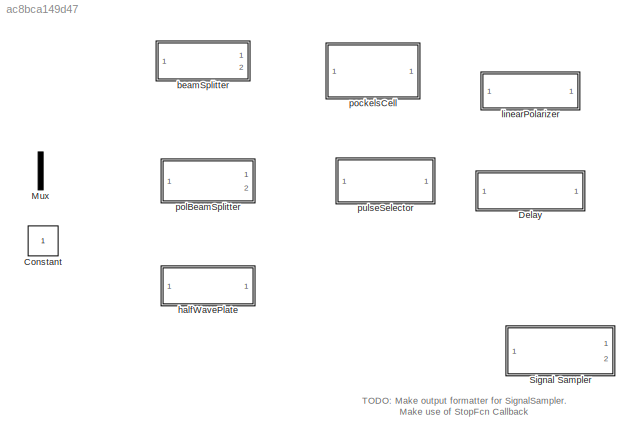
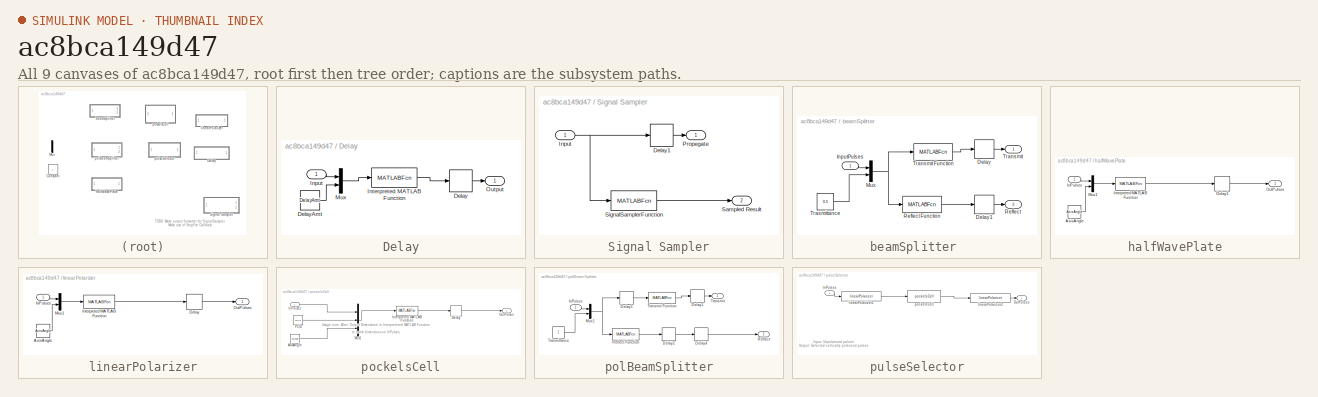
[diagram: thumbnail index - all 9 canvases of the model, root first then tree order]
MODEL slx_ac8bca149d47
KIND library
BLOCK [Constant] Constant
BLOCK [SubSystem] Delay
  Ports = [1, 1]
  RequestExecContextInheritance = off
BLOCK [Delay] Delay/Delay
  DelayLength = 1
  InitialCondition = 0
  InputPortMap = u0
  Ports = [1, 1]
BLOCK [Constant] Delay/DelayAmt
  Value = DelayAmt
BLOCK [Inport] Delay/Input
  IconDisplay = Port number
BLOCK [MATLABFcn] Delay/Interpreted MATLAB Function
  MATLABFcn = delay(u)
  Ports = [1, 1]
BLOCK [Mux] Delay/Mux
  DisplayOption = bar
  Inputs = 2
  Ports = [2, 1]
BLOCK [Outport] Delay/Output
  IconDisplay = Port number
BLOCK [Mux] Mux
  DisplayOption = bar
  Inputs = 2
  Ports = [2, 1]
BLOCK [SubSystem] Signal Sampler
  Ports = [1, 2]
  RequestExecContextInheritance = off
BLOCK [Delay] Signal Sampler/Delay1
  DelayLength = 1
  InitialCondition = 0
  InputPortMap = u0
  Ports = [1, 1]
BLOCK [Inport] Signal Sampler/Input
  IconDisplay = Port number
BLOCK [Outport] Signal Sampler/Propegate
  IconDisplay = Port number
BLOCK [Outport] Signal Sampler/Sampled Result
  IconDisplay = Port number
  Port = 2
BLOCK [MATLABFcn] Signal Sampler/SignalSamplerFunction
  MATLABFcn = signalSampler(u)
  Ports = [1, 1]
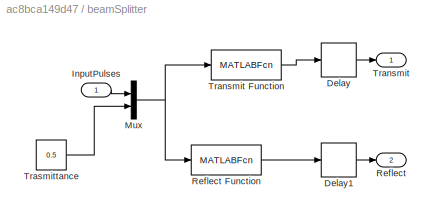
BLOCK [SubSystem] beamSplitter 
  Ports = [1, 2]
  RequestExecContextInheritance = off
BLOCK [Delay] beamSplitter /Delay
  DelayLength = 1
  InitialCondition = 0
  InputPortMap = u0
  Ports = [1, 1]
BLOCK [Delay] beamSplitter /Delay1
  DelayLength = 1
  InitialCondition = 0
  InputPortMap = u0
  Ports = [1, 1]
BLOCK [Inport] beamSplitter /InputPulses
  IconDisplay = Port number
BLOCK [Mux] beamSplitter /Mux
  DisplayOption = bar
  Inputs = 2
  Ports = [2, 1]
BLOCK [Outport] beamSplitter /Reflect
  IconDisplay = Port number
  Port = 2
BLOCK [MATLABFcn] beamSplitter /Reflect Function
  MATLABFcn = beamSplitterReflect(u)
  Ports = [1, 1]
BLOCK [Outport] beamSplitter /Transmit
  IconDisplay = Port number
BLOCK [MATLABFcn] beamSplitter /Transmit Function
  MATLABFcn = beamSplitterTransmit(u)
  Ports = [1, 1]
BLOCK [Constant] beamSplitter /Trasmittance
  Value = 0.5
BLOCK [SubSystem] halfWavePlate
  Ports = [1, 1]
  RequestExecContextInheritance = off
BLOCK [Constant] halfWavePlate/AxisAngle
  Value = AxisAngle
BLOCK [Delay] halfWavePlate/Delay1
  DelayLength = 1
  InitialCondition = 0
  InputPortMap = u0
  Ports = [1, 1]
BLOCK [Inport] halfWavePlate/InPulses
  IconDisplay = Port number
BLOCK [MATLABFcn] halfWavePlate/Interpreted MATLAB Function
  MATLABFcn = halfWavePlate(u)
  Ports = [1, 1]
BLOCK [Mux] halfWavePlate/Mux1
  DisplayOption = bar
  Inputs = 2
  Ports = [2, 1]
BLOCK [Outport] halfWavePlate/OutPulses
  IconDisplay = Port number
BLOCK [SubSystem] linearPolarizer
  Ports = [1, 1]
  RequestExecContextInheritance = off
BLOCK [Constant] linearPolarizer/AxisAngle
  Value = AxisAngle
BLOCK [Delay] linearPolarizer/Delay
  DelayLength = 1
  InitialCondition = 0
  InputPortMap = u0
  Ports = [1, 1]
BLOCK [Inport] linearPolarizer/InPulses
  IconDisplay = Port number
BLOCK [MATLABFcn] linearPolarizer/Interpreted MATLAB Function
  MATLABFcn = linearPolarizer(u)
  Ports = [1, 1]
BLOCK [Mux] linearPolarizer/Mux1
  DisplayOption = bar
  Inputs = 2
  Ports = [2, 1]
BLOCK [Outport] linearPolarizer/OutPulses
  IconDisplay = Port number
BLOCK [SubSystem] pockelsCell
  Ports = [1, 1]
  RequestExecContextInheritance = off
BLOCK [Constant] pockelsCell/AxisAngle
  Value = AxisAngle
BLOCK [Delay] pockelsCell/Delay
  DelayLength = 1
  InitialCondition = 0
  InputPortMap = u0
  Ports = [1, 1]
BLOCK [Inport] pockelsCell/InPulses
  IconDisplay = Port number
BLOCK [MATLABFcn] pockelsCell/Interpreted MATLAB Function
  MATLABFcn = pockelsCell(u)
  OutputDimensions = OutputDimensions
  Ports = [1, 1]
BLOCK [Mux] pockelsCell/Mux1
  DisplayOption = bar
  Inputs = 3
  Ports = [3, 1]
BLOCK [Outport] pockelsCell/OutPulses
  IconDisplay = Port number
BLOCK [Constant] pockelsCell/PCID
  Value = PCID
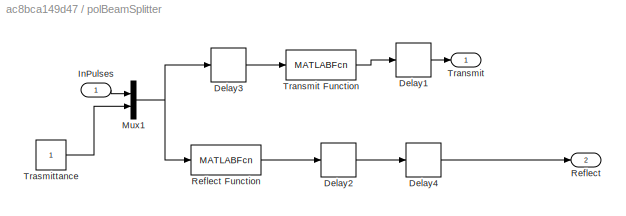
BLOCK [SubSystem] polBeamSplitter
  Ports = [1, 2]
  RequestExecContextInheritance = off
BLOCK [Delay] polBeamSplitter/Delay1
  DelayLength = 1
  InitialCondition = 0
  InputPortMap = u0
  Ports = [1, 1]
BLOCK [Delay] polBeamSplitter/Delay2
  DelayLength = 1
  InitialCondition = 0
  InputPortMap = u0
  Ports = [1, 1]
BLOCK [Delay] polBeamSplitter/Delay3
  DelayLength = 1
  InitialCondition = 0
  InputPortMap = u0
  Ports = [1, 1]
BLOCK [Delay] polBeamSplitter/Delay4
  DelayLength = 1
  InitialCondition = 0
  InputPortMap = u0
  Ports = [1, 1]
BLOCK [Inport] polBeamSplitter/InPulses
  IconDisplay = Port number
BLOCK [Mux] polBeamSplitter/Mux1
  DisplayOption = bar
  Inputs = 2
  Ports = [2, 1]
BLOCK [Outport] polBeamSplitter/Reflect
  IconDisplay = Port number
  Port = 2
BLOCK [MATLABFcn] polBeamSplitter/Reflect Function
  MATLABFcn = polBeamSplitterReflect(u)
  Ports = [1, 1]
BLOCK [Outport] polBeamSplitter/Transmit
  IconDisplay = Port number
BLOCK [MATLABFcn] polBeamSplitter/Transmit Function
  MATLABFcn = polBeamSplitterTransmit(u)
  Ports = [1, 1]
BLOCK [Constant] polBeamSplitter/Trasmittance
BLOCK [SubSystem] pulseSelector
  Ports = [1, 1]
  RequestExecContextInheritance = off
BLOCK [Inport] pulseSelector/InPulses
  IconDisplay = Port number
BLOCK [Outport] pulseSelector/OutPulses
  IconDisplay = Port number
BLOCK [Reference] pulseSelector/linearPolarizer1  REF=BlockLib/linearPolarizer
  AxisAngle = 0
  Ports = [1, 1]
  SourceBlock = BlockLib/linearPolarizer
BLOCK [Reference] pulseSelector/linearPolarizer2  REF=BlockLib/linearPolarizer
  AxisAngle = pi/2
  Ports = [1, 1]
  SourceBlock = BlockLib/linearPolarizer
BLOCK [Reference] pulseSelector/pockelsCell  REF=BlockLib/pockelsCell
  AxisAngle = pi/4
  OutputDimensions = OutputDimensions
  PCID = PCID
  Ports = [1, 1]
  SourceBlock = BlockLib/pockelsCell
ANNOTATION (root): TODO: Make output formatter for SignalSampler. Make use of StopFcn Callback
ANNOTATION pockelsCell: Usage note: Alter 'Output Dimensions' in Interpreteted MATLAB Function to match dimensions on InPulses.
ANNOTATION pulseSelector: Input: Unpolarized pulses Output: Selected vertically polarized pulses
LINE Delay/Delay:1 -> Delay/Output:1
LINE Delay/DelayAmt:1 -> Delay/Mux:2
LINE Delay/Input:1 -> Delay/Mux:1
LINE Delay/Interpreted MATLAB Function:1 -> Delay/Delay:1
LINE Delay/Mux:1 -> Delay/Interpreted MATLAB Function:1
LINE Signal Sampler/Delay1:1 -> Signal Sampler/Propegate:1
NET Signal Sampler/Input:1 -> Signal Sampler/Delay1:1, Signal Sampler/SignalSamplerFunction:1
LINE Signal Sampler/SignalSamplerFunction:1 -> Signal Sampler/Sampled Result:1
LINE beamSplitter /Delay1:1 -> beamSplitter /Reflect:1
LINE beamSplitter /Delay:1 -> beamSplitter /Transmit:1
LINE beamSplitter /InputPulses:1 -> beamSplitter /Mux:1
NET beamSplitter /Mux:1 -> beamSplitter /Reflect Function:1, beamSplitter /Transmit Function:1
LINE beamSplitter /Reflect Function:1 -> beamSplitter /Delay1:1
LINE beamSplitter /Transmit Function:1 -> beamSplitter /Delay:1
LINE beamSplitter /Trasmittance:1 -> beamSplitter /Mux:2
LINE halfWavePlate/AxisAngle:1 -> halfWavePlate/Mux1:2
LINE halfWavePlate/Delay1:1 -> halfWavePlate/OutPulses:1
LINE halfWavePlate/InPulses:1 -> halfWavePlate/Mux1:1
LINE halfWavePlate/Interpreted MATLAB Function:1 -> halfWavePlate/Delay1:1
LINE halfWavePlate/Mux1:1 -> halfWavePlate/Interpreted MATLAB Function:1
LINE linearPolarizer/AxisAngle:1 -> linearPolarizer/Mux1:2
LINE linearPolarizer/Delay:1 -> linearPolarizer/OutPulses:1
LINE linearPolarizer/InPulses:1 -> linearPolarizer/Mux1:1
LINE linearPolarizer/Interpreted MATLAB Function:1 -> linearPolarizer/Delay:1
LINE linearPolarizer/Mux1:1 -> linearPolarizer/Interpreted MATLAB Function:1
LINE pockelsCell/AxisAngle:1 -> pockelsCell/Mux1:3
LINE pockelsCell/Delay:1 -> pockelsCell/OutPulses:1
LINE pockelsCell/InPulses:1 -> pockelsCell/Mux1:1
LINE pockelsCell/Interpreted MATLAB Function:1 -> pockelsCell/Delay:1
LINE pockelsCell/Mux1:1 -> pockelsCell/Interpreted MATLAB Function:1
LINE pockelsCell/PCID:1 -> pockelsCell/Mux1:2
LINE polBeamSplitter/Delay1:1 -> polBeamSplitter/Transmit:1
LINE polBeamSplitter/Delay2:1 -> polBeamSplitter/Delay4:1
LINE polBeamSplitter/Delay3:1 -> polBeamSplitter/Transmit Function:1
LINE polBeamSplitter/Delay4:1 -> polBeamSplitter/Reflect:1
LINE polBeamSplitter/InPulses:1 -> polBeamSplitter/Mux1:1
NET polBeamSplitter/Mux1:1 -> polBeamSplitter/Delay3:1, polBeamSplitter/Reflect Function:1
LINE polBeamSplitter/Reflect Function:1 -> polBeamSplitter/Delay2:1
LINE polBeamSplitter/Transmit Function:1 -> polBeamSplitter/Delay1:1
LINE polBeamSplitter/Trasmittance:1 -> polBeamSplitter/Mux1:2
LINE pulseSelector/InPulses:1 -> pulseSelector/linearPolarizer1:1
LINE pulseSelector/linearPolarizer1:1 -> pulseSelector/pockelsCell:1
LINE pulseSelector/linearPolarizer2:1 -> pulseSelector/OutPulses:1
LINE pulseSelector/pockelsCell:1 -> pulseSelector/linearPolarizer2:1
note: NET lines group one-source signal fan-out (src -> all destinations, sorted); 1:1 wires keep LINE
